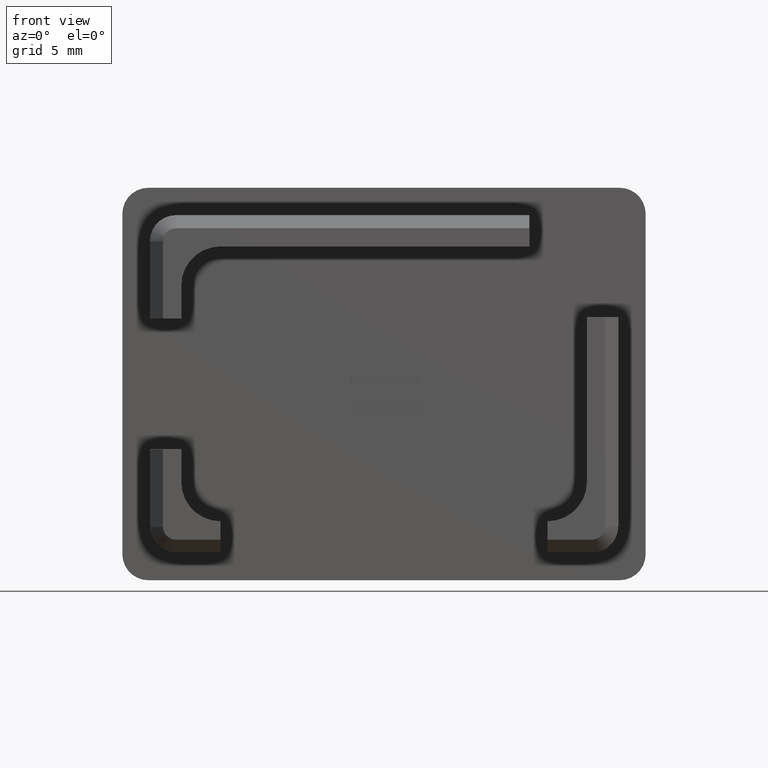
[diagram: clean part render]
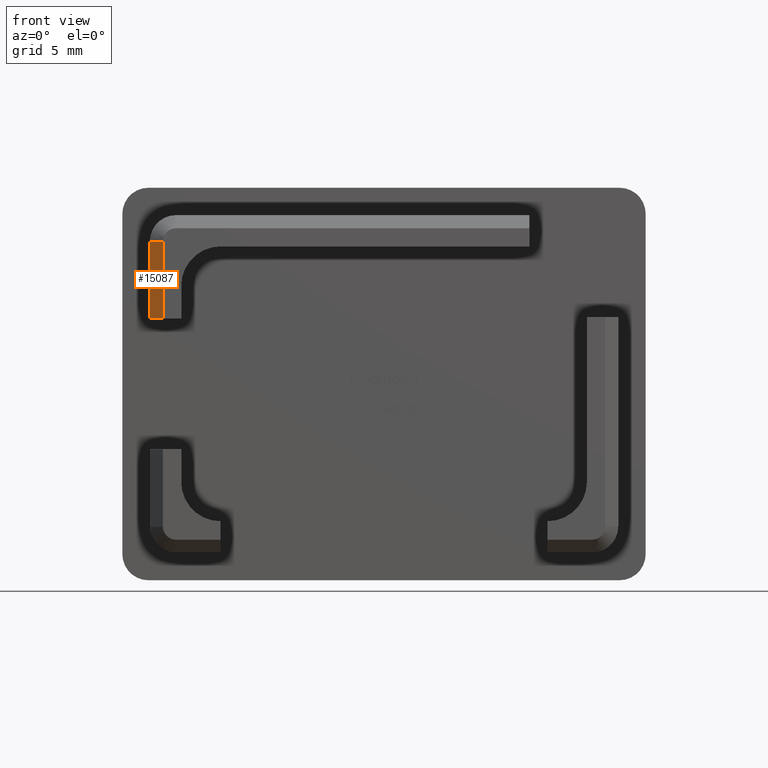
[diagram: same view with one face highlighted and labeled with its STEP entity id]
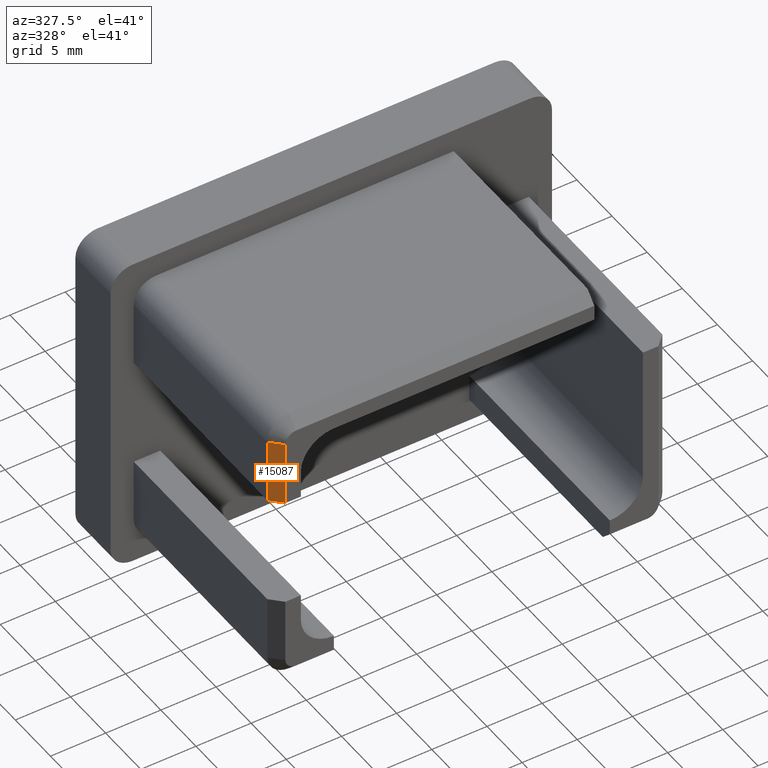
[diagram: same view with one face highlighted and labeled with its STEP entity id]
A machine part, front view. The second image highlights one B-rep face of the part: STEP entity #15087.
A second angle (auxiliary view) of the same face is appended — the face is thin or edge-on in the first view.
In plain terms, the highlighted planar face has unit normal (-0.7071, -0.7071, 0).
Its self-contained STEP definition (entity closure, byte-faithful):
#509 = EDGE_LOOP ( 'NONE', ( #12618, #8185, #11524, #14140 ) ) ;
#1044 = CARTESIAN_POINT ( 'NONE',  ( -16.90000000000001600, -20.00000000000000000, 1.484396290835851700E-014 ) ) ;
#1411 = LINE ( 'NONE', #4694, #8139 ) ;
#1478 = DIRECTION ( 'NONE',  ( -0.7071067811865465700, 0.7071067811865484600, -0.0000000000000000000 ) ) ;
#3344 = EDGE_CURVE ( 'NONE', #6531, #13016, #4868, .T. ) ;
#3639 = DIRECTION ( 'NONE',  ( 0.7071067811865462400, -0.7071067811865489100, -1.226634733346700300E-015 ) ) ;
#4223 = LINE ( 'NONE', #8646, #7415 ) ;
#4694 = CARTESIAN_POINT ( 'NONE',  ( -17.90000000000000600, -19.00000000000000000, 10.89999999999999700 ) ) ;
#4868 = LINE ( 'NONE', #13734, #10344 ) ;
#6531 = VERTEX_POINT ( 'NONE', #13680 ) ;
#6782 = LINE ( 'NONE', #11807, #7726 ) ;
#7325 = EDGE_CURVE ( 'NONE', #14738, #9084, #6782, .T. ) ;
#7415 = VECTOR ( 'NONE', #1478, 1000.000000000000000 ) ;
#7666 = DIRECTION ( 'NONE',  ( 8.783410004945858200E-016, 0.0000000000000000000, 1.000000000000000000 ) ) ;
#7726 = VECTOR ( 'NONE', #14150, 1000.000000000000000 ) ;
#8139 = VECTOR ( 'NONE', #3639, 999.9999999999998900 ) ;
#8185 = ORIENTED_EDGE ( 'NONE', *, *, #7325, .F. ) ;
#8378 = DIRECTION ( 'NONE',  ( -0.7071067811865484600, -0.7071067811865465700, 6.210808776438991400E-016 ) ) ;
#8646 = CARTESIAN_POINT ( 'NONE',  ( -16.90000000000001300, -19.99999999999999600, 4.999999999999994700 ) ) ;
#9084 = VERTEX_POINT ( 'NONE', #9691 ) ;
#9682 = CARTESIAN_POINT ( 'NONE',  ( -16.90000000000000900, -20.00000000000000000, 10.89999999999999500 ) ) ;
#9691 = CARTESIAN_POINT ( 'NONE',  ( -16.90000000000000900, -20.00000000000000000, 4.999999999999994700 ) ) ;
#9931 = EDGE_CURVE ( 'NONE', #9084, #6531, #4223, .T. ) ;
#10331 = EDGE_CURVE ( 'NONE', #13016, #14738, #1411, .T. ) ;
#10344 = VECTOR ( 'NONE', #7666, 1000.000000000000000 ) ;
#10663 = CARTESIAN_POINT ( 'NONE',  ( -17.90000000000000600, -19.00000000000000000, 10.89999999999999700 ) ) ;
#10846 = AXIS2_PLACEMENT_3D ( 'NONE', #1044, #8378, #15496 ) ;
#11199 = FACE_OUTER_BOUND ( 'NONE', #509, .T. ) ;
#11524 = ORIENTED_EDGE ( 'NONE', *, *, #10331, .F. ) ;
#11790 = PLANE ( 'NONE',  #10846 ) ;
#11807 = CARTESIAN_POINT ( 'NONE',  ( -16.90000000000001300, -20.00000000000000000, 4.999999999999993800 ) ) ;
#12618 = ORIENTED_EDGE ( 'NONE', *, *, #9931, .F. ) ;
#13016 = VERTEX_POINT ( 'NONE', #10663 ) ;
#13680 = CARTESIAN_POINT ( 'NONE',  ( -17.90000000000000900, -19.00000000000000000, 4.999999999999994700 ) ) ;
#13734 = CARTESIAN_POINT ( 'NONE',  ( -17.90000000000000600, -19.00000000000000000, 10.89999999999999700 ) ) ;
#14140 = ORIENTED_EDGE ( 'NONE', *, *, #3344, .F. ) ;
#14150 = DIRECTION ( 'NONE',  ( -8.783410004945858200E-016, 0.0000000000000000000, -1.000000000000000000 ) ) ;
#14738 = VERTEX_POINT ( 'NONE', #9682 ) ;
#15087 = ADVANCED_FACE ( 'NONE', ( #11199 ), #11790, .T. ) ;
#15496 = DIRECTION ( 'NONE',  ( 8.783410004945858200E-016, 0.0000000000000000000, 1.000000000000000000 ) ) ;